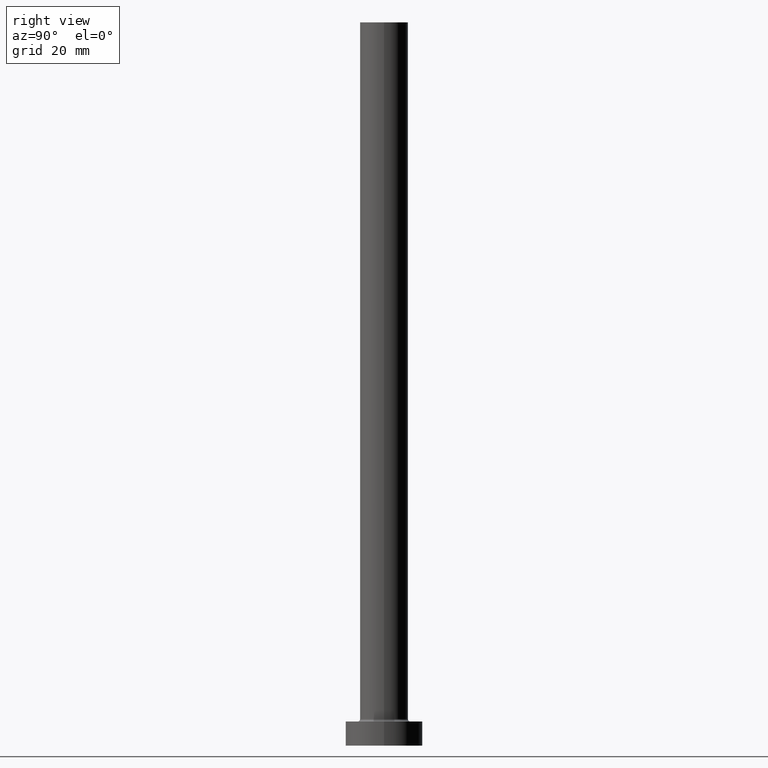
[diagram: clean part render]
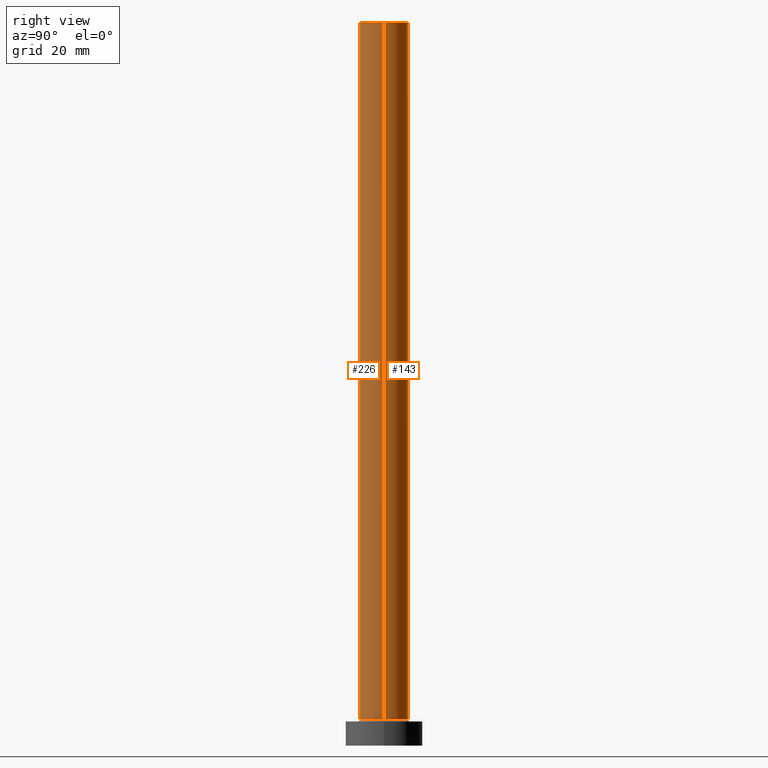
[diagram: same view with one multi-face feature highlighted, each face labeled with its STEP entity id]
A machine part, right view. The highlighted faces form ONE feature: a constant-radius fillet chain: 2 tangent blend faces with common blend radius 5 mm. The faces share edges in the B-rep.
Their STEP definitions:
[1] entity #226 (Cylinder):
#3 = ORIENTED_EDGE ( 'NONE', *, *, #429, .T. ) ;
#7 = DIRECTION ( 'NONE',  ( 1.000000000000000000, 0.000000000000000000, 0.000000000000000000 ) ) ;
#25 = DIRECTION ( 'NONE',  ( -0.000000000000000000, -0.000000000000000000, -1.000000000000000000 ) ) ;
#39 = CARTESIAN_POINT ( 'NONE',  ( -5.000000000000000000, 0.000000000000000000, 5.500000000000005329 ) ) ;
#48 = CARTESIAN_POINT ( 'NONE',  ( 0.000000000000000000, 0.000000000000000000, 150.0000000000000000 ) ) ;
#56 = CARTESIAN_POINT ( 'NONE',  ( 5.000000000000000000, 6.123233995736766282E-16, 5.500000000000005329 ) ) ;
#68 = LINE ( 'NONE', #92, #270 ) ;
#72 = ORIENTED_EDGE ( 'NONE', *, *, #105, .F. ) ;
#74 = VERTEX_POINT ( 'NONE', #39 ) ;
#77 = DIRECTION ( 'NONE',  ( 1.000000000000000000, 0.000000000000000000, 0.000000000000000000 ) ) ;
#92 = CARTESIAN_POINT ( 'NONE',  ( -5.000000000000000000, 0.000000000000000000, 150.0000000000000000 ) ) ;
#105 = EDGE_CURVE ( 'NONE', #130, #435, #330, .T. ) ;
#116 = AXIS2_PLACEMENT_3D ( 'NONE', #326, #221, #77 ) ;
#118 = EDGE_CURVE ( 'NONE', #74, #387, #183, .T. ) ;
#130 = VERTEX_POINT ( 'NONE', #190 ) ;
#153 = DIRECTION ( 'NONE',  ( -1.000000000000000000, 0.000000000000000000, 0.000000000000000000 ) ) ;
#168 = EDGE_CURVE ( 'NONE', #435, #387, #434, .T. ) ;
#183 = CIRCLE ( 'NONE', #116, 5.000000000000000000 ) ;
#190 = CARTESIAN_POINT ( 'NONE',  ( -5.000000000000000000, 0.000000000000000000, 150.0000000000000000 ) ) ;
#193 = FACE_OUTER_BOUND ( 'NONE', #412, .T. ) ;
#194 = CARTESIAN_POINT ( 'NONE',  ( 0.000000000000000000, 0.000000000000000000, 150.0000000000000000 ) ) ;
#200 = AXIS2_PLACEMENT_3D ( 'NONE', #194, #337, #153 ) ;
#221 = DIRECTION ( 'NONE',  ( 0.000000000000000000, 0.000000000000000000, 1.000000000000000000 ) ) ;
#226 = ADVANCED_FACE ( 'NONE', ( #193 ), #227, .T. ) ;
#227 = CYLINDRICAL_SURFACE ( 'NONE', #200, 5.000000000000000000 ) ;
#228 = VECTOR ( 'NONE', #403, 1000.000000000000000 ) ;
#233 = CARTESIAN_POINT ( 'NONE',  ( 5.000000000000000000, 6.123233995736766282E-16, 150.0000000000000000 ) ) ;
#240 = ORIENTED_EDGE ( 'NONE', *, *, #118, .T. ) ;
#270 = VECTOR ( 'NONE', #25, 1000.000000000000000 ) ;
#309 = CARTESIAN_POINT ( 'NONE',  ( 5.000000000000000000, 6.123233995736766282E-16, 150.0000000000000000 ) ) ;
#326 = CARTESIAN_POINT ( 'NONE',  ( 0.000000000000000000, 0.000000000000000000, 5.500000000000005329 ) ) ;
#330 = CIRCLE ( 'NONE', #367, 5.000000000000000000 ) ;
#337 = DIRECTION ( 'NONE',  ( -0.000000000000000000, -0.000000000000000000, -1.000000000000000000 ) ) ;
#352 = DIRECTION ( 'NONE',  ( 0.000000000000000000, 0.000000000000000000, 1.000000000000000000 ) ) ;
#367 = AXIS2_PLACEMENT_3D ( 'NONE', #48, #352, #7 ) ;
#385 = ORIENTED_EDGE ( 'NONE', *, *, #168, .F. ) ;
#387 = VERTEX_POINT ( 'NONE', #56 ) ;
#403 = DIRECTION ( 'NONE',  ( -0.000000000000000000, -0.000000000000000000, -1.000000000000000000 ) ) ;
#412 = EDGE_LOOP ( 'NONE', ( #385, #72, #3, #240 ) ) ;
#429 = EDGE_CURVE ( 'NONE', #130, #74, #68, .T. ) ;
#434 = LINE ( 'NONE', #309, #228 ) ;
#435 = VERTEX_POINT ( 'NONE', #233 ) ;
[2] entity #143 (Cylinder):
#17 = DIRECTION ( 'NONE',  ( 0.000000000000000000, 0.000000000000000000, 1.000000000000000000 ) ) ;
#25 = DIRECTION ( 'NONE',  ( -0.000000000000000000, -0.000000000000000000, -1.000000000000000000 ) ) ;
#39 = CARTESIAN_POINT ( 'NONE',  ( -5.000000000000000000, 0.000000000000000000, 5.500000000000005329 ) ) ;
#56 = CARTESIAN_POINT ( 'NONE',  ( 5.000000000000000000, 6.123233995736766282E-16, 5.500000000000005329 ) ) ;
#68 = LINE ( 'NONE', #92, #270 ) ;
#74 = VERTEX_POINT ( 'NONE', #39 ) ;
#88 = EDGE_CURVE ( 'NONE', #387, #74, #98, .T. ) ;
#92 = CARTESIAN_POINT ( 'NONE',  ( -5.000000000000000000, 0.000000000000000000, 150.0000000000000000 ) ) ;
#98 = CIRCLE ( 'NONE', #358, 5.000000000000000000 ) ;
#122 = CARTESIAN_POINT ( 'NONE',  ( 0.000000000000000000, 0.000000000000000000, 150.0000000000000000 ) ) ;
#124 = CARTESIAN_POINT ( 'NONE',  ( 0.000000000000000000, 0.000000000000000000, 5.500000000000005329 ) ) ;
#130 = VERTEX_POINT ( 'NONE', #190 ) ;
#133 = AXIS2_PLACEMENT_3D ( 'NONE', #122, #17, #262 ) ;
#143 = ADVANCED_FACE ( 'NONE', ( #291 ), #431, .T. ) ;
#152 = ORIENTED_EDGE ( 'NONE', *, *, #88, .T. ) ;
#161 = ORIENTED_EDGE ( 'NONE', *, *, #168, .T. ) ;
#168 = EDGE_CURVE ( 'NONE', #435, #387, #434, .T. ) ;
#169 = ORIENTED_EDGE ( 'NONE', *, *, #429, .F. ) ;
#173 = CIRCLE ( 'NONE', #133, 5.000000000000000000 ) ;
#186 = CARTESIAN_POINT ( 'NONE',  ( 0.000000000000000000, 0.000000000000000000, 150.0000000000000000 ) ) ;
#189 = DIRECTION ( 'NONE',  ( 0.000000000000000000, 0.000000000000000000, 1.000000000000000000 ) ) ;
#190 = CARTESIAN_POINT ( 'NONE',  ( -5.000000000000000000, 0.000000000000000000, 150.0000000000000000 ) ) ;
#192 = EDGE_CURVE ( 'NONE', #435, #130, #173, .T. ) ;
#228 = VECTOR ( 'NONE', #403, 1000.000000000000000 ) ;
#233 = CARTESIAN_POINT ( 'NONE',  ( 5.000000000000000000, 6.123233995736766282E-16, 150.0000000000000000 ) ) ;
#248 = AXIS2_PLACEMENT_3D ( 'NONE', #186, #256, #396 ) ;
#256 = DIRECTION ( 'NONE',  ( -0.000000000000000000, -0.000000000000000000, -1.000000000000000000 ) ) ;
#262 = DIRECTION ( 'NONE',  ( 1.000000000000000000, 0.000000000000000000, 0.000000000000000000 ) ) ;
#270 = VECTOR ( 'NONE', #25, 1000.000000000000000 ) ;
#291 = FACE_OUTER_BOUND ( 'NONE', #303, .T. ) ;
#303 = EDGE_LOOP ( 'NONE', ( #414, #161, #152, #169 ) ) ;
#309 = CARTESIAN_POINT ( 'NONE',  ( 5.000000000000000000, 6.123233995736766282E-16, 150.0000000000000000 ) ) ;
#333 = DIRECTION ( 'NONE',  ( 1.000000000000000000, 0.000000000000000000, 0.000000000000000000 ) ) ;
#358 = AXIS2_PLACEMENT_3D ( 'NONE', #124, #189, #333 ) ;
#387 = VERTEX_POINT ( 'NONE', #56 ) ;
#396 = DIRECTION ( 'NONE',  ( -1.000000000000000000, 0.000000000000000000, 0.000000000000000000 ) ) ;
#403 = DIRECTION ( 'NONE',  ( -0.000000000000000000, -0.000000000000000000, -1.000000000000000000 ) ) ;
#414 = ORIENTED_EDGE ( 'NONE', *, *, #192, .F. ) ;
#429 = EDGE_CURVE ( 'NONE', #130, #74, #68, .T. ) ;
#431 = CYLINDRICAL_SURFACE ( 'NONE', #248, 5.000000000000000000 ) ;
#434 = LINE ( 'NONE', #309, #228 ) ;
#435 = VERTEX_POINT ( 'NONE', #233 ) ;